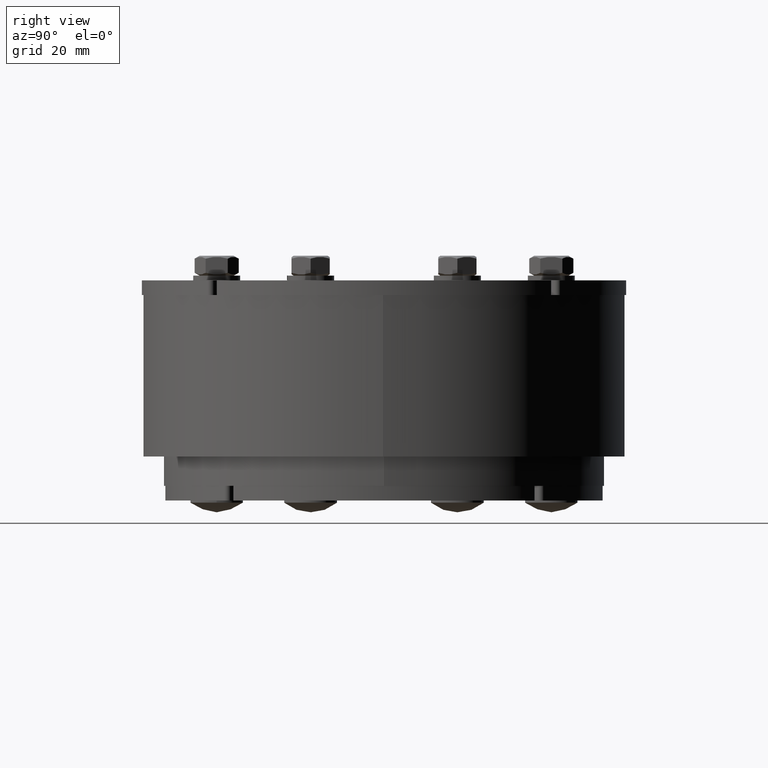
[diagram: clean part render]
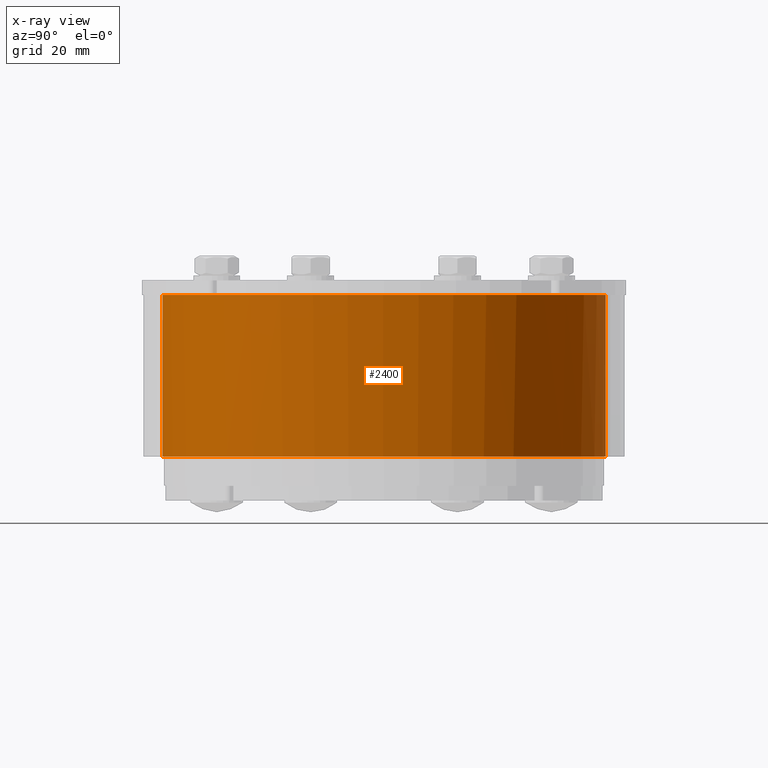
[diagram: x-ray — body ghosted, one internal face saturated and labeled with its STEP entity id]
A machine part, right view, then the same camera in x-ray: the body is ghosted and one INTERNAL B-rep face — a face not visible from any outside direction — is saturated and labeled: STEP entity #2400.
In plain terms, the highlighted cylindrical surface (bore or boss wall) has radius 75.5 mm, axis along (0, 0, 1).
Its self-contained STEP definition (entity closure, byte-faithful):
#2373=CARTESIAN_POINT('',(0.0,0.0,-238.36316829577513));
#2374=DIRECTION('',(0.0,0.0,1.0));
#2375=DIRECTION('',(1.0,0.0,0.0));
#2376=AXIS2_PLACEMENT_3D('',#2373,#2374,#2375);
#2377=CYLINDRICAL_SURFACE('',#2376,75.5);
#2378=CARTESIAN_POINT('',(-75.5,-9.246083E-015,-55.0));
#2379=VERTEX_POINT('',#2378);
#2380=CARTESIAN_POINT('',(0.0,0.0,-55.0));
#2381=DIRECTION('',(0.0,0.0,1.0));
#2382=DIRECTION('',(1.0,0.0,0.0));
#2383=AXIS2_PLACEMENT_3D('',#2380,#2381,#2382);
#2384=CIRCLE('',#2383,75.5);
#2385=EDGE_CURVE('',#2379,#2379,#2384,.T.);
#2386=ORIENTED_EDGE('',*,*,#2385,.F.);
#2387=EDGE_LOOP('',(#2386));
#2388=FACE_OUTER_BOUND('',#2387,.T.);
#2389=CARTESIAN_POINT('',(75.5,0.0,0.0));
#2390=VERTEX_POINT('',#2389);
#2391=CARTESIAN_POINT('',(0.0,0.0,0.0));
#2392=DIRECTION('',(0.0,0.0,-1.0));
#2393=DIRECTION('',(1.0,0.0,0.0));
#2394=AXIS2_PLACEMENT_3D('',#2391,#2392,#2393);
#2395=CIRCLE('',#2394,75.5);
#2396=EDGE_CURVE('',#2390,#2390,#2395,.T.);
#2397=ORIENTED_EDGE('',*,*,#2396,.F.);
#2398=EDGE_LOOP('',(#2397));
#2399=FACE_BOUND('',#2398,.T.);
#2400=ADVANCED_FACE('',(#2388,#2399),#2377,.F.);